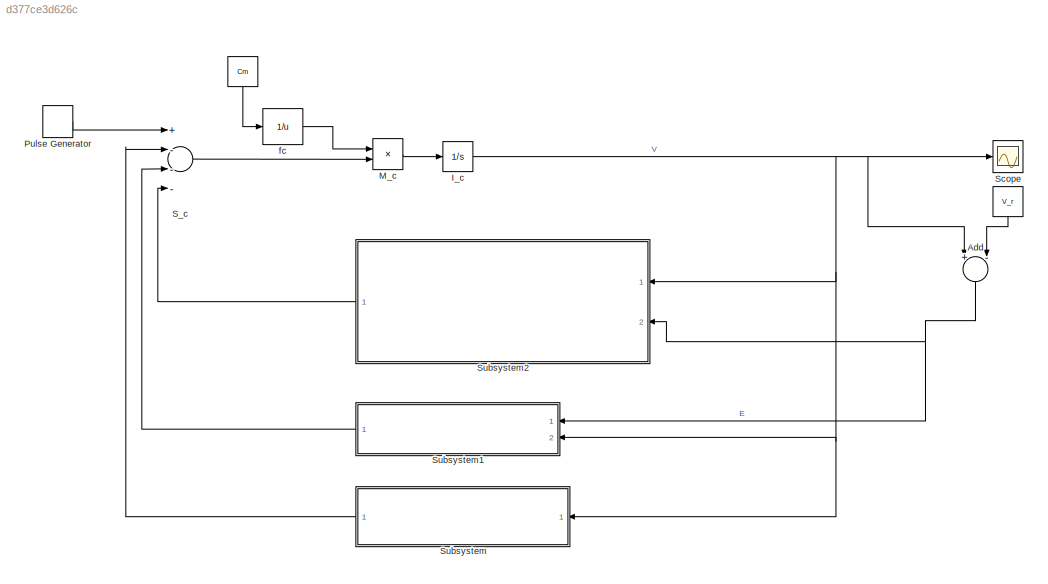
MODEL slx_d377ce3d626c
KIND model
CONFIG AbsTol = auto
CONFIG EnableMultiTasking = off
CONFIG FixedStep = auto
CONFIG MaxStep = auto
CONFIG MinStep = auto
CONFIG RelTol = 1e-3
CONFIG SampleTimeConstraint = Unconstrained
CONFIG Solver = VariableStepAuto
CONFIG SolverName = VariableStepAuto
CONFIG StartTime = 0.0
CONFIG StopTime = 60
BLOCK [Constant]    
  Value = Cm
BLOCK [Constant]      
  Value = V_r
BLOCK [Sum] Add
  InputSameDT = off
  Inputs = +-
  OutDataTypeStr = Inherit: Inherit via internal rule
  Ports = [2, 1]
  SaturateOnIntegerOverflow = off
BLOCK [Integrator] I_c 
  Ports = [1, 1]
BLOCK [Product] M_c
  InputSameDT = off
  OutDataTypeStr = Inherit: Inherit via internal rule
  Ports = [2, 1]
  RndMeth = Floor
  SaturateOnIntegerOverflow = off
BLOCK [DiscretePulseGenerator] Pulse Generator
  Amplitude = 60
  Period = 60
  Ports = [0, 1]
  PulseType = Time based
  PulseWidth = 5
BLOCK [Sum] S_c
  InputSameDT = off
  Inputs = +---
  OutDataTypeStr = Inherit: Inherit via internal rule
  Ports = [4, 1]
  SaturateOnIntegerOverflow = off
BLOCK [Scope] Scope
  Floating = off
  NumInputPorts = 1
  Ports = [1]
  ScopeSpecificationString = Simulink.scopes.TimeScopeBlockCfg('CurrentConfiguration', extmgr.ConfigurationSet(extmgr.Configuration('Core','General UI',true),extmgr.Configuration('Core','Source UI',true),extmgr.Configuration('Sources','WiredSimulink',true),extmgr.Configuration('Visuals','Time Domain',true,'SerializedDisplays',{struct('MinYLimReal','-80.12759','MaxYLimReal','30.02255','YLabelReal','','MinYLimMag','0.00000','Ma...<+1402ch>
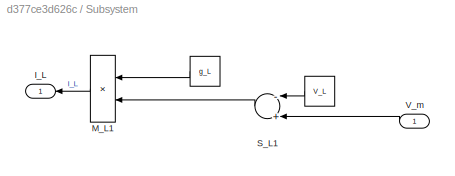
BLOCK [SubSystem] Subsystem
  Ports = [1, 1]
  RequestExecContextInheritance = off
BLOCK [Constant] Subsystem/     
  Value = V_L
BLOCK [Constant] Subsystem/            
  Value = g_L
BLOCK [Outport] Subsystem/I_L
  IconDisplay = Port number
BLOCK [Product] Subsystem/M_L1
  InputSameDT = off
  OutDataTypeStr = Inherit: Inherit via internal rule
  Ports = [2, 1]
  RndMeth = Floor
  SaturateOnIntegerOverflow = off
BLOCK [Sum] Subsystem/S_L1 
  InputSameDT = off
  Inputs = -+
  OutDataTypeStr = Inherit: Inherit via internal rule
  Ports = [2, 1]
  SaturateOnIntegerOverflow = off
BLOCK [Inport] Subsystem/V_m
  IconDisplay = Port number
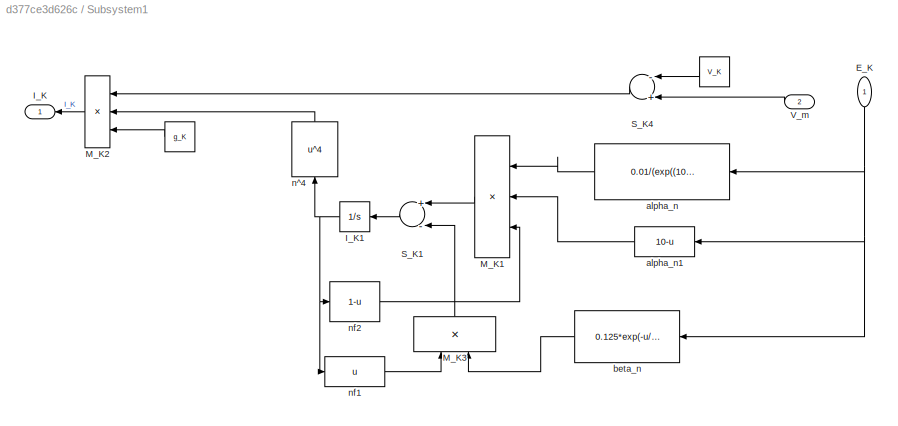
BLOCK [SubSystem] Subsystem1
  Ports = [2, 1]
  RequestExecContextInheritance = off
BLOCK [Constant] Subsystem1/ 
  Value = V_K
BLOCK [Constant] Subsystem1/      
  Value = g_K
BLOCK [Inport] Subsystem1/E_K
  IconDisplay = Port number
BLOCK [Outport] Subsystem1/I_K
  IconDisplay = Port number
BLOCK [Integrator] Subsystem1/I_K1
  Ports = [1, 1]
BLOCK [Product] Subsystem1/M_K1
  InputSameDT = off
  Inputs = 3
  OutDataTypeStr = Inherit: Inherit via internal rule
  Ports = [3, 1]
  RndMeth = Floor
  SaturateOnIntegerOverflow = off
BLOCK [Product] Subsystem1/M_K2
  InputSameDT = off
  Inputs = 3
  OutDataTypeStr = Inherit: Inherit via internal rule
  Ports = [3, 1]
  RndMeth = Floor
  SaturateOnIntegerOverflow = off
BLOCK [Product] Subsystem1/M_K3
  InputSameDT = off
  OutDataTypeStr = Inherit: Inherit via internal rule
  Ports = [2, 1]
  RndMeth = Floor
  SaturateOnIntegerOverflow = off
BLOCK [Sum] Subsystem1/S_K1
  InputSameDT = off
  Inputs = +-
  OutDataTypeStr = Inherit: Inherit via internal rule
  Ports = [2, 1]
  SaturateOnIntegerOverflow = off
BLOCK [Sum] Subsystem1/S_K4
  InputSameDT = off
  Inputs = -+
  OutDataTypeStr = Inherit: Inherit via internal rule
  Ports = [2, 1]
  SaturateOnIntegerOverflow = off
BLOCK [Inport] Subsystem1/V_m
  IconDisplay = Port number
  Port = 2
BLOCK [Fcn] Subsystem1/alpha_n
  Expr = 0.01/(exp((10-u)/10)-1)
BLOCK [Fcn] Subsystem1/alpha_n1
  Expr = 10-u
BLOCK [Fcn] Subsystem1/beta_n
  Expr = 0.125*exp(-u/80)
BLOCK [Fcn] Subsystem1/n^4
  Expr = u^4
BLOCK [Fcn] Subsystem1/nf1 
  Expr = u
BLOCK [Fcn] Subsystem1/nf2
  Expr = 1-u
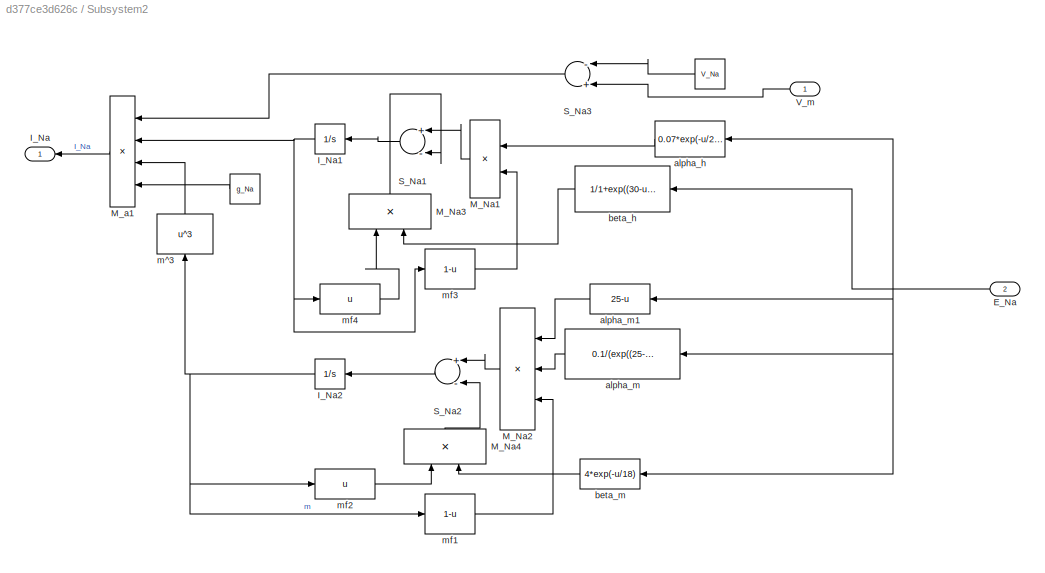
BLOCK [SubSystem] Subsystem2
  Ports = [2, 1]
  RequestExecContextInheritance = off
BLOCK [Constant] Subsystem2/ 
  Value = g_Na
BLOCK [Constant] Subsystem2/  
  Value = V_Na
BLOCK [Inport] Subsystem2/E_Na
  IconDisplay = Port number
  Port = 2
BLOCK [Outport] Subsystem2/I_Na
  IconDisplay = Port number
BLOCK [Integrator] Subsystem2/I_Na1
  Ports = [1, 1]
BLOCK [Integrator] Subsystem2/I_Na2
  Ports = [1, 1]
BLOCK [Product] Subsystem2/M_Na1
  InputSameDT = off
  OutDataTypeStr = Inherit: Inherit via internal rule
  Ports = [2, 1]
  RndMeth = Floor
  SaturateOnIntegerOverflow = off
BLOCK [Product] Subsystem2/M_Na2
  InputSameDT = off
  Inputs = 3
  OutDataTypeStr = Inherit: Inherit via internal rule
  Ports = [3, 1]
  RndMeth = Floor
  SaturateOnIntegerOverflow = off
BLOCK [Product] Subsystem2/M_Na3
  InputSameDT = off
  OutDataTypeStr = Inherit: Inherit via internal rule
  Ports = [2, 1]
  RndMeth = Floor
  SaturateOnIntegerOverflow = off
BLOCK [Product] Subsystem2/M_Na4
  InputSameDT = off
  OutDataTypeStr = Inherit: Inherit via internal rule
  Ports = [2, 1]
  RndMeth = Floor
  SaturateOnIntegerOverflow = off
BLOCK [Product] Subsystem2/M_a1 
  InputSameDT = off
  Inputs = 4
  OutDataTypeStr = Inherit: Inherit via internal rule
  Ports = [4, 1]
  RndMeth = Floor
  SaturateOnIntegerOverflow = off
BLOCK [Sum] Subsystem2/S_Na1
  InputSameDT = off
  Inputs = +-
  OutDataTypeStr = Inherit: Inherit via internal rule
  Ports = [2, 1]
  SaturateOnIntegerOverflow = off
BLOCK [Sum] Subsystem2/S_Na2
  InputSameDT = off
  Inputs = +-
  OutDataTypeStr = Inherit: Inherit via internal rule
  Ports = [2, 1]
  SaturateOnIntegerOverflow = off
BLOCK [Sum] Subsystem2/S_Na3 
  InputSameDT = off
  Inputs = -+
  OutDataTypeStr = Inherit: Inherit via internal rule
  Ports = [2, 1]
  SaturateOnIntegerOverflow = off
BLOCK [Inport] Subsystem2/V_m
  IconDisplay = Port number
BLOCK [Fcn] Subsystem2/alpha_h
  Expr = 0.07*exp(-u/20)
BLOCK [Fcn] Subsystem2/alpha_m
  Expr = 0.1/(exp((25-u)/10)-1)
BLOCK [Fcn] Subsystem2/alpha_m1
  Expr = 25-u
BLOCK [Fcn] Subsystem2/beta_h
  Expr = 1/1+exp((30-u)/10)
BLOCK [Fcn] Subsystem2/beta_m
  Expr = 4*exp(-u/18)
BLOCK [Fcn] Subsystem2/m^3 
  Expr = u^3
BLOCK [Fcn] Subsystem2/mf1
  Expr = 1-u
BLOCK [Fcn] Subsystem2/mf2
  Expr = u
BLOCK [Fcn] Subsystem2/mf3
  Expr = 1-u
BLOCK [Fcn] Subsystem2/mf4
  Expr = u
BLOCK [Fcn] fc
  Expr = 1/u
LINE      :1 -> Add:2
LINE    :1 -> fc:1
NET Add:1 -> Subsystem1:1, Subsystem2:2
NET I_c :1 -> Add:1, Scope:1, Subsystem1:2, Subsystem2:1, Subsystem:1
LINE M_c:1 -> I_c :1
LINE Pulse Generator:1 -> S_c:1
LINE S_c:1 -> M_c:2
LINE Subsystem/            :1 -> Subsystem/M_L1:1
LINE Subsystem/     :1 -> Subsystem/S_L1 :1
LINE Subsystem/M_L1:1 -> Subsystem/I_L:1
LINE Subsystem/S_L1 :1 -> Subsystem/M_L1:2
LINE Subsystem/V_m:1 -> Subsystem/S_L1 :2
LINE Subsystem1/      :1 -> Subsystem1/M_K2:3
LINE Subsystem1/ :1 -> Subsystem1/S_K4:1
NET Subsystem1/E_K:1 -> Subsystem1/alpha_n1:1, Subsystem1/alpha_n:1, Subsystem1/beta_n:1
NET Subsystem1/I_K1:1 -> Subsystem1/n^4:1, Subsystem1/nf1 :1, Subsystem1/nf2:1
LINE Subsystem1/M_K1:1 -> Subsystem1/S_K1:1
LINE Subsystem1/M_K2:1 -> Subsystem1/I_K:1
LINE Subsystem1/M_K3:1 -> Subsystem1/S_K1:2
LINE Subsystem1/S_K1:1 -> Subsystem1/I_K1:1
LINE Subsystem1/S_K4:1 -> Subsystem1/M_K2:1
LINE Subsystem1/V_m:1 -> Subsystem1/S_K4:2
LINE Subsystem1/alpha_n1:1 -> Subsystem1/M_K1:2
LINE Subsystem1/alpha_n:1 -> Subsystem1/M_K1:1
LINE Subsystem1/beta_n:1 -> Subsystem1/M_K3:2
LINE Subsystem1/n^4:1 -> Subsystem1/M_K2:2
LINE Subsystem1/nf1 :1 -> Subsystem1/M_K3:1
LINE Subsystem1/nf2:1 -> Subsystem1/M_K1:3
LINE Subsystem1:1 -> S_c:3
LINE Subsystem2/  :1 -> Subsystem2/S_Na3 :1
LINE Subsystem2/ :1 -> Subsystem2/M_a1 :4
NET Subsystem2/E_Na:1 -> Subsystem2/alpha_h:1, Subsystem2/alpha_m1:1, Subsystem2/alpha_m:1, Subsystem2/beta_h:1, Subsystem2/beta_m:1
NET Subsystem2/I_Na1:1 -> Subsystem2/M_a1 :2, Subsystem2/mf3:1, Subsystem2/mf4:1
NET Subsystem2/I_Na2:1 -> Subsystem2/m^3 :1, Subsystem2/mf1:1, Subsystem2/mf2:1
LINE Subsystem2/M_Na1:1 -> Subsystem2/S_Na1:1
LINE Subsystem2/M_Na2:1 -> Subsystem2/S_Na2:1
LINE Subsystem2/M_Na3:1 -> Subsystem2/S_Na1:2
LINE Subsystem2/M_Na4:1 -> Subsystem2/S_Na2:2
LINE Subsystem2/M_a1 :1 -> Subsystem2/I_Na:1
LINE Subsystem2/S_Na1:1 -> Subsystem2/I_Na1:1
LINE Subsystem2/S_Na2:1 -> Subsystem2/I_Na2:1
LINE Subsystem2/S_Na3 :1 -> Subsystem2/M_a1 :1
LINE Subsystem2/V_m:1 -> Subsystem2/S_Na3 :2
LINE Subsystem2/alpha_h:1 -> Subsystem2/M_Na1:1
LINE Subsystem2/alpha_m1:1 -> Subsystem2/M_Na2:1
LINE Subsystem2/alpha_m:1 -> Subsystem2/M_Na2:2
LINE Subsystem2/beta_h:1 -> Subsystem2/M_Na3:2
LINE Subsystem2/beta_m:1 -> Subsystem2/M_Na4:2
LINE Subsystem2/m^3 :1 -> Subsystem2/M_a1 :3
LINE Subsystem2/mf1:1 -> Subsystem2/M_Na2:3
LINE Subsystem2/mf2:1 -> Subsystem2/M_Na4:1
LINE Subsystem2/mf3:1 -> Subsystem2/M_Na1:2
LINE Subsystem2/mf4:1 -> Subsystem2/M_Na3:1
LINE Subsystem2:1 -> S_c:4
LINE Subsystem:1 -> S_c:2
LINE fc:1 -> M_c:1
note: NET lines group one-source signal fan-out (src -> all destinations, sorted); 1:1 wires keep LINE
